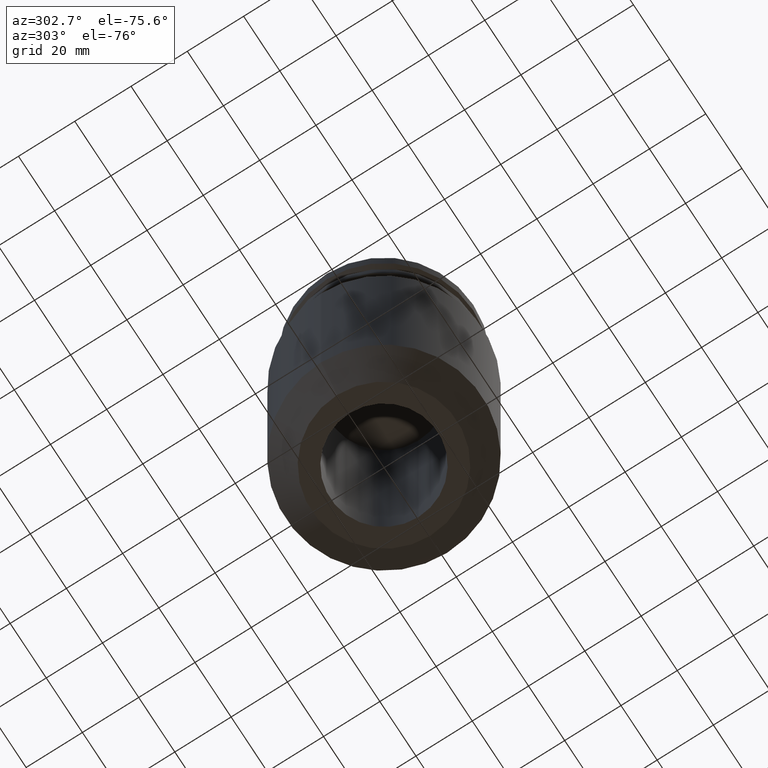
[diagram: clean part render]
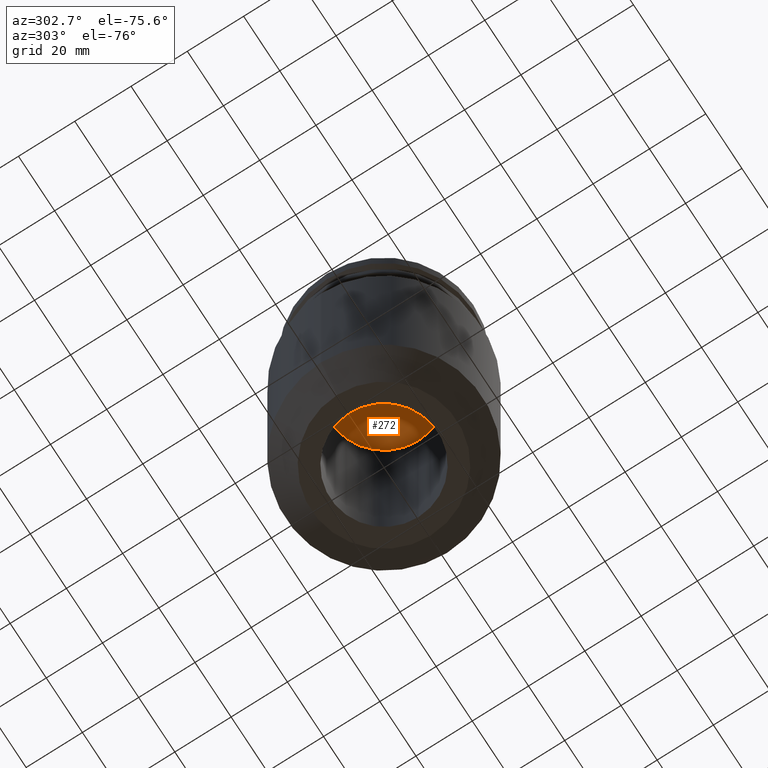
[diagram: same view with one face highlighted and labeled with its STEP entity id]
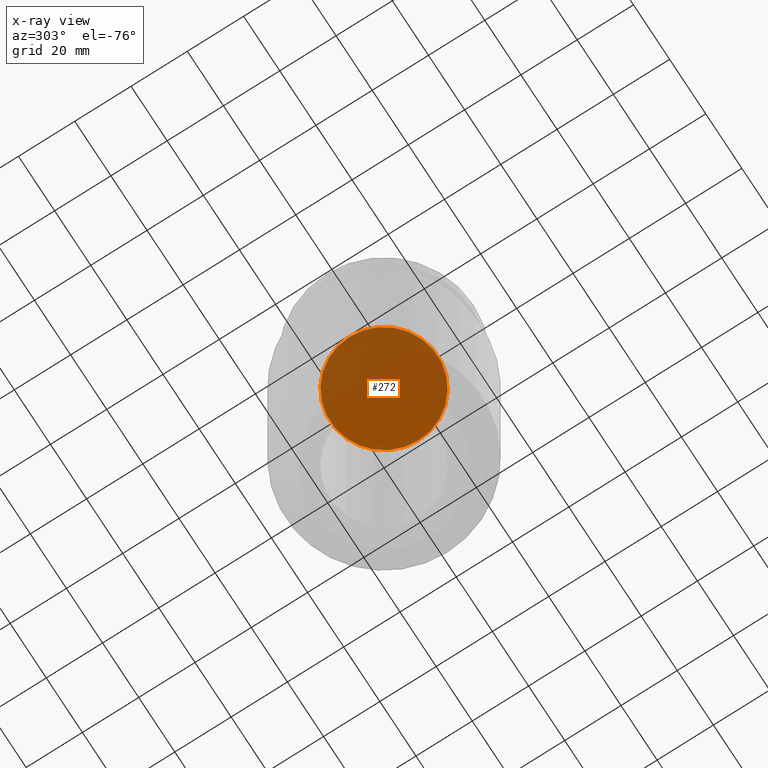
[diagram: x-ray of the same camera — body ghosted, the highlighted face saturated]
A machine part, auxiliary view. The second image highlights one B-rep face of the part: STEP entity #272.
The next image is the same camera in x-ray: the body ghosted, the highlighted face saturated — about 74% of this face is hidden behind the body in this view.
In plain terms, the highlighted planar face has unit normal (0, -0, 1).
Its self-contained STEP definition (entity closure, byte-faithful):
#9 = CARTESIAN_POINT ( 'NONE',  ( 0.000000000000000000, 0.000000000000000000, -35.04999999999999716 ) ) ;
#39 = CARTESIAN_POINT ( 'NONE',  ( 0.000000000000000000, 22.22499999999999787, -35.04999999999999716 ) ) ;
#85 = CARTESIAN_POINT ( 'NONE',  ( 19.05000000000000071, 0.000000000000000000, -35.04999999999999716 ) ) ;
#109 = VERTEX_POINT ( 'NONE', #85 ) ;
#121 = CIRCLE ( 'NONE', #362, 19.05000000000000071 ) ;
#148 = DIRECTION ( 'NONE',  ( 1.000000000000000000, 0.000000000000000000, 0.000000000000000000 ) ) ;
#163 = EDGE_LOOP ( 'NONE', ( #323, #651 ) ) ;
#249 = EDGE_CURVE ( 'NONE', #109, #530, #496, .T. ) ;
#253 = CARTESIAN_POINT ( 'NONE',  ( -19.05000000000000071, 2.332952152375708043E-15, -35.04999999999999716 ) ) ;
#259 = DIRECTION ( 'NONE',  ( -0.000000000000000000, -0.000000000000000000, 1.000000000000000000 ) ) ;
#272 = ADVANCED_FACE ( 'NONE', ( #806 ), #689, .F. ) ;
#323 = ORIENTED_EDGE ( 'NONE', *, *, #249, .F. ) ;
#362 = AXIS2_PLACEMENT_3D ( 'NONE', #9, #259, #400 ) ;
#366 = CARTESIAN_POINT ( 'NONE',  ( 0.000000000000000000, 0.000000000000000000, -35.04999999999999716 ) ) ;
#400 = DIRECTION ( 'NONE',  ( 1.000000000000000000, 0.000000000000000000, 0.000000000000000000 ) ) ;
#496 = CIRCLE ( 'NONE', #599, 19.05000000000000071 ) ;
#530 = VERTEX_POINT ( 'NONE', #253 ) ;
#556 = DIRECTION ( 'NONE',  ( 1.000000000000000000, 0.000000000000000000, 0.000000000000000000 ) ) ;
#599 = AXIS2_PLACEMENT_3D ( 'NONE', #366, #617, #556 ) ;
#617 = DIRECTION ( 'NONE',  ( -0.000000000000000000, -0.000000000000000000, 1.000000000000000000 ) ) ;
#629 = EDGE_CURVE ( 'NONE', #530, #109, #121, .T. ) ;
#651 = ORIENTED_EDGE ( 'NONE', *, *, #629, .F. ) ;
#677 = AXIS2_PLACEMENT_3D ( 'NONE', #39, #739, #148 ) ;
#689 = PLANE ( 'NONE',  #677 ) ;
#739 = DIRECTION ( 'NONE',  ( 0.000000000000000000, -0.000000000000000000, 1.000000000000000000 ) ) ;
#806 = FACE_OUTER_BOUND ( 'NONE', #163, .T. ) ;